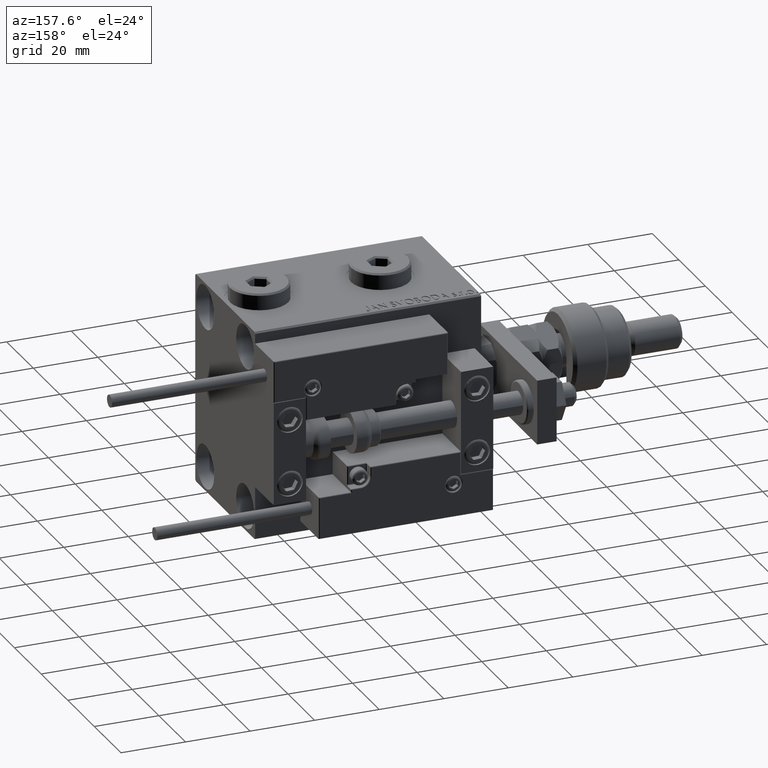
[diagram: clean part render]
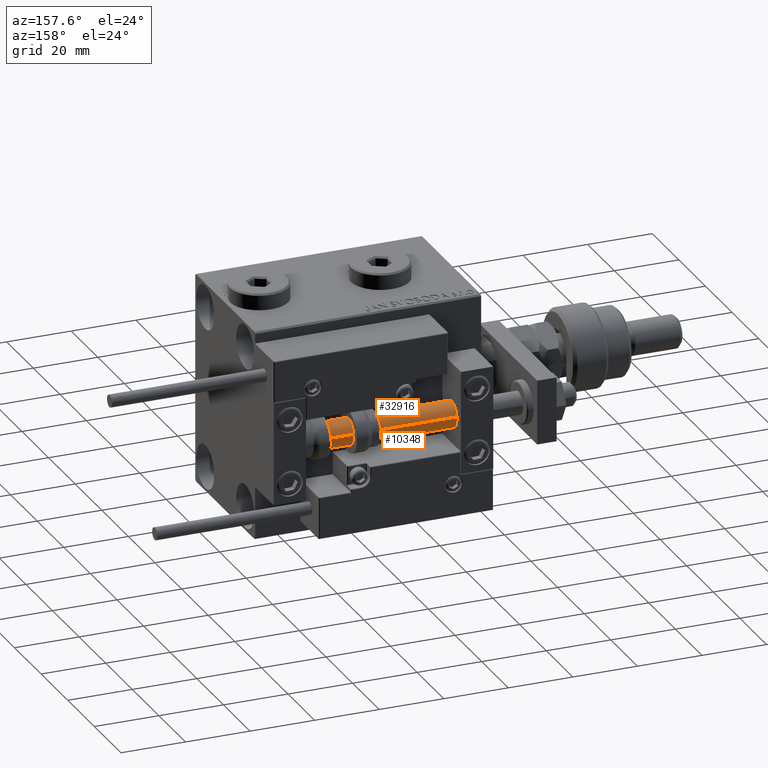
[diagram: same view with one multi-face feature highlighted, each face labeled with its STEP entity id]
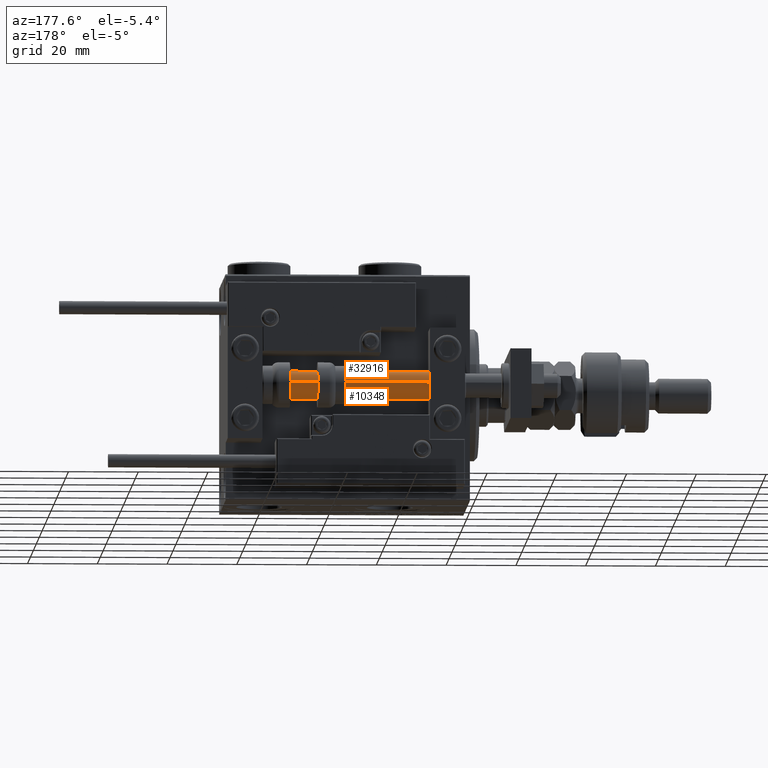
[diagram: same view with one multi-face feature highlighted, each face labeled with its STEP entity id]
A machine part, auxiliary view. The highlighted faces form ONE feature: a constant-radius fillet chain: 2 tangent blend faces with common blend radius 4 mm. The faces share edges in the B-rep.
A second angle (auxiliary view) of the same feature is appended — it is thin or edge-on in the first view.
Their STEP definitions:
[1] entity #32916 (Cylinder):
#1036 = CARTESIAN_POINT ( 'NONE',  ( 4.000000000000000000, 4.898587196589412829E-16, 70.00000000000000000 ) ) ;
#2308 = DIRECTION ( 'NONE',  ( -0.000000000000000000, -0.000000000000000000, -1.000000000000000000 ) ) ;
#2329 = DIRECTION ( 'NONE',  ( 0.000000000000000000, 0.000000000000000000, 1.000000000000000000 ) ) ;
#5261 = LINE ( 'NONE', #22011, #8154 ) ;
#5855 = EDGE_LOOP ( 'NONE', ( #43823, #35900, #53418, #53601 ) ) ;
#6438 = CARTESIAN_POINT ( 'NONE',  ( 0.000000000000000000, 0.000000000000000000, 70.00000000000000000 ) ) ;
#8154 = VECTOR ( 'NONE', #26402, 1000.000000000000000 ) ;
#8516 = VERTEX_POINT ( 'NONE', #35510 ) ;
#9869 = VERTEX_POINT ( 'NONE', #51677 ) ;
#11630 = CIRCLE ( 'NONE', #52883, 4.000000000000000000 ) ;
#11656 = AXIS2_PLACEMENT_3D ( 'NONE', #26615, #34611, #18635 ) ;
#14745 = LINE ( 'NONE', #1036, #41974 ) ;
#15307 = EDGE_CURVE ( 'NONE', #8516, #26679, #11630, .T. ) ;
#17807 = DIRECTION ( 'NONE',  ( -0.000000000000000000, -0.000000000000000000, -1.000000000000000000 ) ) ;
#18635 = DIRECTION ( 'NONE',  ( 1.000000000000000000, 0.000000000000000000, 0.000000000000000000 ) ) ;
#19091 = DIRECTION ( 'NONE',  ( 1.000000000000000000, 0.000000000000000000, 0.000000000000000000 ) ) ;
#22011 = CARTESIAN_POINT ( 'NONE',  ( -4.000000000000000000, 0.000000000000000000, 70.00000000000000000 ) ) ;
#23565 = AXIS2_PLACEMENT_3D ( 'NONE', #6438, #2308, #35849 ) ;
#25691 = CIRCLE ( 'NONE', #11656, 4.000000000000000000 ) ;
#26402 = DIRECTION ( 'NONE',  ( -0.000000000000000000, -0.000000000000000000, -1.000000000000000000 ) ) ;
#26407 = CARTESIAN_POINT ( 'NONE',  ( 4.000000000000000000, 4.898587196589412829E-16, 2.000000000000029310 ) ) ;
#26615 = CARTESIAN_POINT ( 'NONE',  ( 0.000000000000000000, 0.000000000000000000, 2.000000000000029310 ) ) ;
#26679 = VERTEX_POINT ( 'NONE', #33081 ) ;
#28253 = VERTEX_POINT ( 'NONE', #26407 ) ;
#32009 = CARTESIAN_POINT ( 'NONE',  ( 0.000000000000000000, 0.000000000000000000, 70.00000000000000000 ) ) ;
#32916 = ADVANCED_FACE ( 'NONE', ( #48214 ), #48481, .T. ) ;
#33081 = CARTESIAN_POINT ( 'NONE',  ( -4.000000000000000000, 0.000000000000000000, 70.00000000000000000 ) ) ;
#34611 = DIRECTION ( 'NONE',  ( -0.000000000000000000, -0.000000000000000000, 1.000000000000000000 ) ) ;
#35510 = CARTESIAN_POINT ( 'NONE',  ( 4.000000000000000000, 4.898587196589412829E-16, 70.00000000000000000 ) ) ;
#35849 = DIRECTION ( 'NONE',  ( -1.000000000000000000, 0.000000000000000000, 0.000000000000000000 ) ) ;
#35900 = ORIENTED_EDGE ( 'NONE', *, *, #41942, .T. ) ;
#41942 = EDGE_CURVE ( 'NONE', #8516, #28253, #14745, .T. ) ;
#41974 = VECTOR ( 'NONE', #17807, 1000.000000000000000 ) ;
#43823 = ORIENTED_EDGE ( 'NONE', *, *, #15307, .F. ) ;
#48214 = FACE_OUTER_BOUND ( 'NONE', #5855, .T. ) ;
#48481 = CYLINDRICAL_SURFACE ( 'NONE', #23565, 4.000000000000000000 ) ;
#50880 = EDGE_CURVE ( 'NONE', #28253, #9869, #25691, .T. ) ;
#51677 = CARTESIAN_POINT ( 'NONE',  ( -4.000000000000000000, 0.000000000000000000, 2.000000000000029310 ) ) ;
#51831 = EDGE_CURVE ( 'NONE', #26679, #9869, #5261, .T. ) ;
#52883 = AXIS2_PLACEMENT_3D ( 'NONE', #32009, #2329, #19091 ) ;
#53418 = ORIENTED_EDGE ( 'NONE', *, *, #50880, .T. ) ;
#53601 = ORIENTED_EDGE ( 'NONE', *, *, #51831, .F. ) ;
[2] entity #10348 (Cylinder):
#1036 = CARTESIAN_POINT ( 'NONE',  ( 4.000000000000000000, 4.898587196589412829E-16, 70.00000000000000000 ) ) ;
#5261 = LINE ( 'NONE', #22011, #8154 ) ;
#5952 = AXIS2_PLACEMENT_3D ( 'NONE', #54309, #29299, #46060 ) ;
#8154 = VECTOR ( 'NONE', #26402, 1000.000000000000000 ) ;
#8516 = VERTEX_POINT ( 'NONE', #35510 ) ;
#9312 = CARTESIAN_POINT ( 'NONE',  ( 0.000000000000000000, 0.000000000000000000, 2.000000000000029310 ) ) ;
#9488 = EDGE_CURVE ( 'NONE', #26679, #8516, #32256, .T. ) ;
#9496 = CARTESIAN_POINT ( 'NONE',  ( 0.000000000000000000, 0.000000000000000000, 70.00000000000000000 ) ) ;
#9869 = VERTEX_POINT ( 'NONE', #51677 ) ;
#10348 = ADVANCED_FACE ( 'NONE', ( #28762 ), #37547, .T. ) ;
#11599 = ORIENTED_EDGE ( 'NONE', *, *, #9488, .F. ) ;
#14745 = LINE ( 'NONE', #1036, #41974 ) ;
#17807 = DIRECTION ( 'NONE',  ( -0.000000000000000000, -0.000000000000000000, -1.000000000000000000 ) ) ;
#18685 = EDGE_LOOP ( 'NONE', ( #37332, #11599, #22248, #20844 ) ) ;
#20844 = ORIENTED_EDGE ( 'NONE', *, *, #48001, .T. ) ;
#22011 = CARTESIAN_POINT ( 'NONE',  ( -4.000000000000000000, 0.000000000000000000, 70.00000000000000000 ) ) ;
#22248 = ORIENTED_EDGE ( 'NONE', *, *, #51831, .T. ) ;
#26402 = DIRECTION ( 'NONE',  ( -0.000000000000000000, -0.000000000000000000, -1.000000000000000000 ) ) ;
#26407 = CARTESIAN_POINT ( 'NONE',  ( 4.000000000000000000, 4.898587196589412829E-16, 2.000000000000029310 ) ) ;
#26679 = VERTEX_POINT ( 'NONE', #33081 ) ;
#28253 = VERTEX_POINT ( 'NONE', #26407 ) ;
#28762 = FACE_OUTER_BOUND ( 'NONE', #18685, .T. ) ;
#29299 = DIRECTION ( 'NONE',  ( -0.000000000000000000, -0.000000000000000000, -1.000000000000000000 ) ) ;
#32256 = CIRCLE ( 'NONE', #42793, 4.000000000000000000 ) ;
#33081 = CARTESIAN_POINT ( 'NONE',  ( -4.000000000000000000, 0.000000000000000000, 70.00000000000000000 ) ) ;
#34342 = CIRCLE ( 'NONE', #52769, 4.000000000000000000 ) ;
#35510 = CARTESIAN_POINT ( 'NONE',  ( 4.000000000000000000, 4.898587196589412829E-16, 70.00000000000000000 ) ) ;
#37332 = ORIENTED_EDGE ( 'NONE', *, *, #41942, .F. ) ;
#37547 = CYLINDRICAL_SURFACE ( 'NONE', #5952, 4.000000000000000000 ) ;
#38730 = DIRECTION ( 'NONE',  ( 1.000000000000000000, 0.000000000000000000, 0.000000000000000000 ) ) ;
#38912 = DIRECTION ( 'NONE',  ( 0.000000000000000000, 0.000000000000000000, 1.000000000000000000 ) ) ;
#41942 = EDGE_CURVE ( 'NONE', #8516, #28253, #14745, .T. ) ;
#41974 = VECTOR ( 'NONE', #17807, 1000.000000000000000 ) ;
#42749 = DIRECTION ( 'NONE',  ( 1.000000000000000000, 0.000000000000000000, 0.000000000000000000 ) ) ;
#42793 = AXIS2_PLACEMENT_3D ( 'NONE', #9496, #38912, #42749 ) ;
#46060 = DIRECTION ( 'NONE',  ( -1.000000000000000000, 0.000000000000000000, 0.000000000000000000 ) ) ;
#46421 = DIRECTION ( 'NONE',  ( -0.000000000000000000, -0.000000000000000000, 1.000000000000000000 ) ) ;
#48001 = EDGE_CURVE ( 'NONE', #9869, #28253, #34342, .T. ) ;
#51677 = CARTESIAN_POINT ( 'NONE',  ( -4.000000000000000000, 0.000000000000000000, 2.000000000000029310 ) ) ;
#51831 = EDGE_CURVE ( 'NONE', #26679, #9869, #5261, .T. ) ;
#52769 = AXIS2_PLACEMENT_3D ( 'NONE', #9312, #46421, #38730 ) ;
#54309 = CARTESIAN_POINT ( 'NONE',  ( 0.000000000000000000, 0.000000000000000000, 70.00000000000000000 ) ) ;